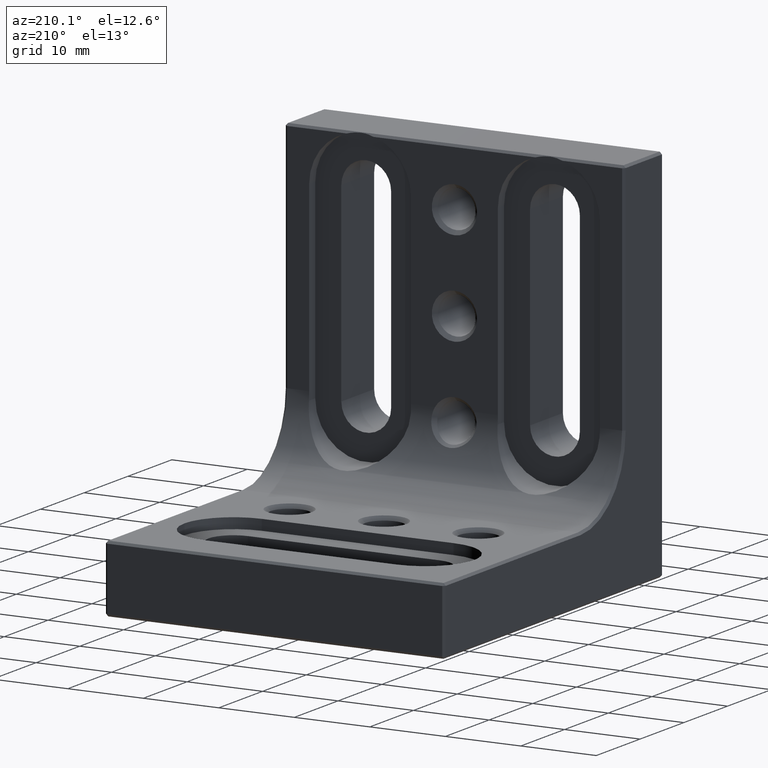
[diagram: clean part render]
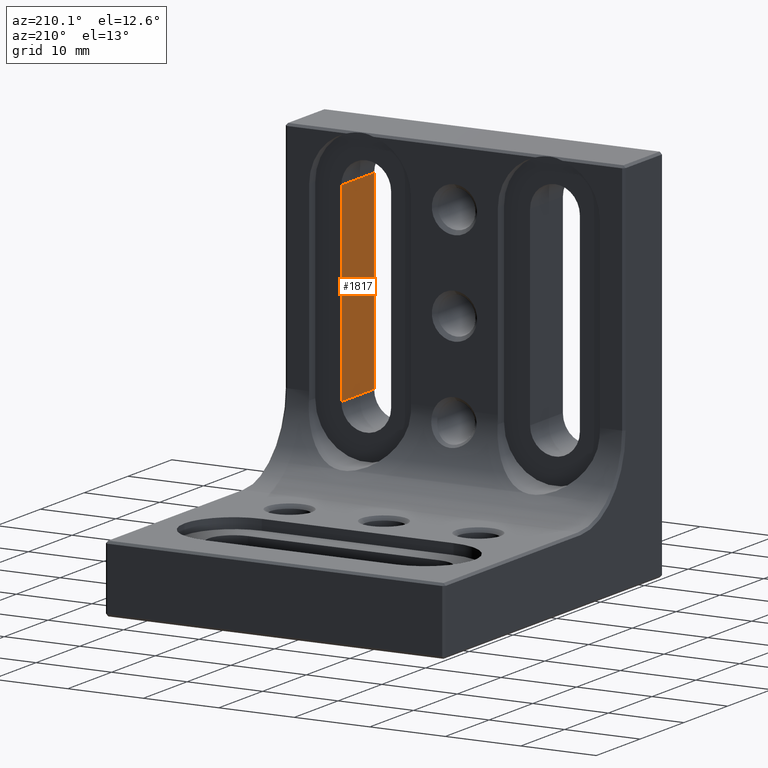
[diagram: same view with one face highlighted and labeled with its STEP entity id]
A machine part, auxiliary view. The second image highlights one B-rep face of the part: STEP entity #1817.
In plain terms, the highlighted planar face has unit normal (1, 0, -0).
Its self-contained STEP definition (entity closure, byte-faithful):
#13 = EDGE_CURVE ( 'NONE', #262, #547, #2404, .T. ) ;
#95 = CARTESIAN_POINT ( 'NONE',  ( 15.80000000000001492, -6.938893903907228378E-15, 43.18999999999999773 ) ) ;
#262 = VERTEX_POINT ( 'NONE', #1681 ) ;
#329 = EDGE_LOOP ( 'NONE', ( #563, #582, #615, #1325 ) ) ;
#456 = EDGE_CURVE ( 'NONE', #1580, #262, #3534, .T. ) ;
#494 = LINE ( 'NONE', #1134, #2414 ) ;
#547 = VERTEX_POINT ( 'NONE', #3055 ) ;
#563 = ORIENTED_EDGE ( 'NONE', *, *, #2904, .F. ) ;
#582 = ORIENTED_EDGE ( 'NONE', *, *, #13, .F. ) ;
#615 = ORIENTED_EDGE ( 'NONE', *, *, #456, .F. ) ;
#632 = VECTOR ( 'NONE', #3241, 1000.000000000000000 ) ;
#657 = DIRECTION ( 'NONE',  ( -0.000000000000000000, 1.000000000000000000, -0.000000000000000000 ) ) ;
#739 = EDGE_CURVE ( 'NONE', #1580, #2437, #494, .T. ) ;
#1134 = CARTESIAN_POINT ( 'NONE',  ( 15.80000000000001492, -6.938893903907228378E-15, 43.18999999999999773 ) ) ;
#1226 = CARTESIAN_POINT ( 'NONE',  ( 15.80000000000001492, 7.499999999999993783, 43.18999999999999773 ) ) ;
#1234 = LINE ( 'NONE', #2085, #1347 ) ;
#1325 = ORIENTED_EDGE ( 'NONE', *, *, #739, .T. ) ;
#1347 = VECTOR ( 'NONE', #2030, 1000.000000000000000 ) ;
#1357 = CARTESIAN_POINT ( 'NONE',  ( 15.80000000000000426, -6.938893903907228378E-15, 17.78999999999999559 ) ) ;
#1580 = VERTEX_POINT ( 'NONE', #95 ) ;
#1681 = CARTESIAN_POINT ( 'NONE',  ( 15.80000000000000426, -6.938893903907228378E-15, 17.78999999999999559 ) ) ;
#1698 = PLANE ( 'NONE',  #1819 ) ;
#1817 = ADVANCED_FACE ( 'NONE', ( #1991 ), #1698, .F. ) ;
#1819 = AXIS2_PLACEMENT_3D ( 'NONE', #1357, #3726, #3764 ) ;
#1991 = FACE_OUTER_BOUND ( 'NONE', #329, .T. ) ;
#2030 = DIRECTION ( 'NONE',  ( 1.365923996832131609E-16, -1.224646799147353454E-16, 1.000000000000000000 ) ) ;
#2069 = CARTESIAN_POINT ( 'NONE',  ( 15.80000000000000426, -6.938893903907228378E-15, 17.78999999999999559 ) ) ;
#2085 = CARTESIAN_POINT ( 'NONE',  ( 15.80000000000000426, 7.499999999999996447, 17.78999999999999559 ) ) ;
#2404 = LINE ( 'NONE', #3578, #2666 ) ;
#2414 = VECTOR ( 'NONE', #2830, 1000.000000000000000 ) ;
#2437 = VERTEX_POINT ( 'NONE', #1226 ) ;
#2666 = VECTOR ( 'NONE', #657, 1000.000000000000000 ) ;
#2830 = DIRECTION ( 'NONE',  ( -0.000000000000000000, 1.000000000000000000, -0.000000000000000000 ) ) ;
#2904 = EDGE_CURVE ( 'NONE', #547, #2437, #1234, .T. ) ;
#3055 = CARTESIAN_POINT ( 'NONE',  ( 15.80000000000000071, 7.499999999999996447, 17.78999999999999559 ) ) ;
#3241 = DIRECTION ( 'NONE',  ( -1.365923996832131609E-16, -0.000000000000000000, -1.000000000000000000 ) ) ;
#3534 = LINE ( 'NONE', #2069, #632 ) ;
#3578 = CARTESIAN_POINT ( 'NONE',  ( 15.80000000000000426, -6.938893903907228378E-15, 17.78999999999999559 ) ) ;
#3726 = DIRECTION ( 'NONE',  ( 1.000000000000000000, 0.000000000000000000, -1.365923996832131609E-16 ) ) ;
#3764 = DIRECTION ( 'NONE',  ( -1.365923996832131609E-16, 0.000000000000000000, -1.000000000000000000 ) ) ;